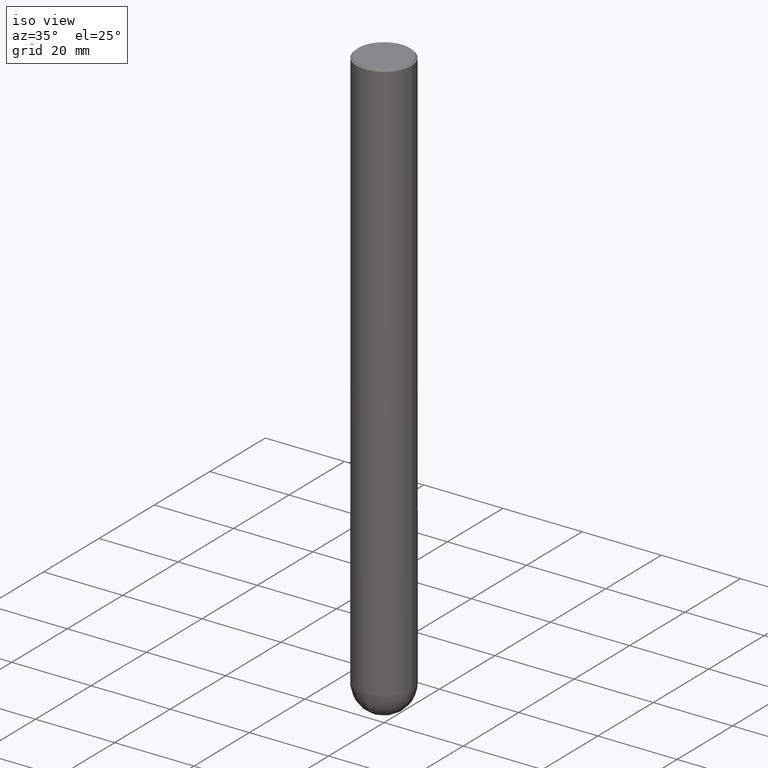
[diagram: clean part render]
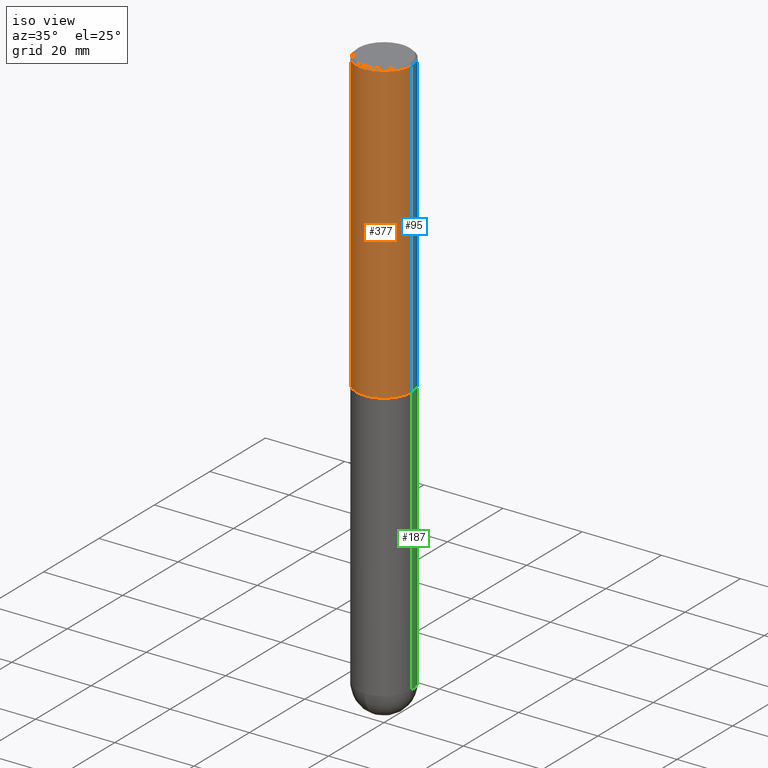
[diagram: same view with three faces highlighted in distinct colors, each labeled with its STEP entity id]
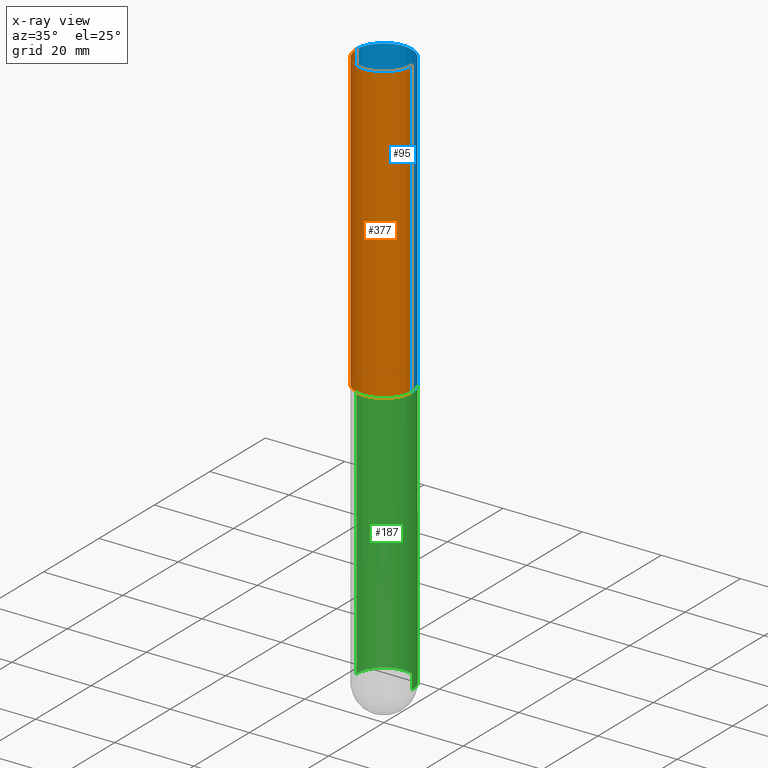
[diagram: x-ray of the same camera — body ghosted, the three highlighted faces saturated]
A machine part, iso view with three faces highlighted in distinct colors.
The next image is the same camera in x-ray (body ghosted, the three faces saturated) — at least one of them is partly hidden behind the body in this view.
Their STEP definitions:

[orange] entity #377 — the highlighted cylindrical surface (edge-blend (fillet) strip) has radius 7.0002 mm, axis along (-0, 0, 1).
#14 = ORIENTED_EDGE ( 'NONE', *, *, #181, .T. ) ;
#15 = CARTESIAN_POINT ( 'NONE',  ( -0.2756000000000002337, 1.958255779754837773E-15, -1.355658510874253128E-29 ) ) ;
#17 = ORIENTED_EDGE ( 'NONE', *, *, #156, .T. ) ;
#36 = CARTESIAN_POINT ( 'NONE',  ( 0.2756000000000004557, -1.223030998183365327E-14, -2.951700000000000212 ) ) ;
#55 = VERTEX_POINT ( 'NONE', #213 ) ;
#72 = ORIENTED_EDGE ( 'NONE', *, *, #283, .F. ) ;
#102 = DIRECTION ( 'NONE',  ( 1.000000000000000000, -6.982962677686267499E-15, 0.000000000000000000 ) ) ;
#103 = EDGE_CURVE ( 'NONE', #347, #55, #400, .T. ) ;
#119 = CARTESIAN_POINT ( 'NONE',  ( 7.218290275216666916E-29, -1.030580546786331359E-14, -2.951700000000000212 ) ) ;
#127 = AXIS2_PLACEMENT_3D ( 'NONE', #119, #288, #362 ) ;
#129 = CARTESIAN_POINT ( 'NONE',  ( 4.890937612370288923E-31, -6.982962677686312563E-17, -0.02000000000000006287 ) ) ;
#150 = LINE ( 'NONE', #170, #265 ) ;
#156 = EDGE_CURVE ( 'NONE', #357, #191, #150, .T. ) ;
#170 = CARTESIAN_POINT ( 'NONE',  ( 0.2756000000000002337, -1.924504513970336926E-15, 1.343874319409361109E-29 ) ) ;
#178 = DIRECTION ( 'NONE',  ( -2.445468806185136877E-29, 3.491481338843145188E-15, 1.000000000000000000 ) ) ;
#181 = EDGE_CURVE ( 'NONE', #347, #357, #299, .T. ) ;
#188 = CYLINDRICAL_SURFACE ( 'NONE', #378, 0.2756000000000002337 ) ;
#191 = VERTEX_POINT ( 'NONE', #364 ) ;
#192 = AXIS2_PLACEMENT_3D ( 'NONE', #129, #255, #102 ) ;
#202 = DIRECTION ( 'NONE',  ( -2.445468806185136877E-29, 3.491481338843145188E-15, 1.000000000000000000 ) ) ;
#213 = CARTESIAN_POINT ( 'NONE',  ( -0.2756000000000000116, 1.854674887193472050E-15, -0.02000000000000006287 ) ) ;
#227 = EDGE_LOOP ( 'NONE', ( #356, #14, #17, #72 ) ) ;
#255 = DIRECTION ( 'NONE',  ( -2.445468806185136597E-29, 3.491481338843145583E-15, 1.000000000000000000 ) ) ;
#265 = VECTOR ( 'NONE', #202, 39.37007874015748143 ) ;
#276 = VECTOR ( 'NONE', #178, 39.37007874015748143 ) ;
#283 = EDGE_CURVE ( 'NONE', #55, #191, #338, .T. ) ;
#288 = DIRECTION ( 'NONE',  ( -2.445468806185136597E-29, 3.491481338843145583E-15, 1.000000000000000000 ) ) ;
#299 = CIRCLE ( 'NONE', #127, 0.2756000000000004557 ) ;
#308 = DIRECTION ( 'NONE',  ( 1.000000000000000000, -6.982962677686267499E-15, 4.876176775795935793E-29 ) ) ;
#338 = CIRCLE ( 'NONE', #192, 0.2756000000000000116 ) ;
#340 = CARTESIAN_POINT ( 'NONE',  ( 0.000000000000000000, 0.000000000000000000, 0.000000000000000000 ) ) ;
#347 = VERTEX_POINT ( 'NONE', #388 ) ;
#356 = ORIENTED_EDGE ( 'NONE', *, *, #103, .F. ) ;
#357 = VERTEX_POINT ( 'NONE', #36 ) ;
#362 = DIRECTION ( 'NONE',  ( 1.000000000000000000, -6.982962677686269077E-15, 0.000000000000000000 ) ) ;
#364 = CARTESIAN_POINT ( 'NONE',  ( 0.2756000000000000116, -1.960582874962697406E-15, -0.02000000000000006287 ) ) ;
#377 = ADVANCED_FACE ( 'NONE', ( #394 ), #188, .T. ) ;
#378 = AXIS2_PLACEMENT_3D ( 'NONE', #340, #411, #308 ) ;
#388 = CARTESIAN_POINT ( 'NONE',  ( -0.2756000000000004002, -3.229561767565246331E-15, -2.951700000000000212 ) ) ;
#394 = FACE_OUTER_BOUND ( 'NONE', #227, .T. ) ;
#400 = LINE ( 'NONE', #15, #276 ) ;
#411 = DIRECTION ( 'NONE',  ( -2.445468806185136597E-29, 3.491481338843145583E-15, 1.000000000000000000 ) ) ;

[blue] entity #95 — the highlighted cylindrical surface (edge-blend (fillet) strip) has radius 7.0002 mm, axis along (-0, 0, 1).
#15 = CARTESIAN_POINT ( 'NONE',  ( -0.2756000000000002337, 1.958255779754837773E-15, -1.355658510874253128E-29 ) ) ;
#22 = CARTESIAN_POINT ( 'NONE',  ( 7.218290275216666916E-29, -1.030580546786331359E-14, -2.951700000000000212 ) ) ;
#26 = ORIENTED_EDGE ( 'NONE', *, *, #103, .T. ) ;
#36 = CARTESIAN_POINT ( 'NONE',  ( 0.2756000000000004557, -1.223030998183365327E-14, -2.951700000000000212 ) ) ;
#49 = CARTESIAN_POINT ( 'NONE',  ( 4.890937612370288923E-31, -6.982962677686312563E-17, -0.02000000000000006287 ) ) ;
#54 = DIRECTION ( 'NONE',  ( -2.445468806185136597E-29, 3.491481338843145583E-15, 1.000000000000000000 ) ) ;
#55 = VERTEX_POINT ( 'NONE', #213 ) ;
#71 = FACE_OUTER_BOUND ( 'NONE', #297, .T. ) ;
#87 = DIRECTION ( 'NONE',  ( -2.445468806185136597E-29, 3.491481338843145583E-15, 1.000000000000000000 ) ) ;
#95 = ADVANCED_FACE ( 'NONE', ( #71 ), #392, .T. ) ;
#103 = EDGE_CURVE ( 'NONE', #347, #55, #400, .T. ) ;
#125 = CIRCLE ( 'NONE', #154, 0.2756000000000000116 ) ;
#139 = DIRECTION ( 'NONE',  ( 1.000000000000000000, -6.982962677686269077E-15, 0.000000000000000000 ) ) ;
#150 = LINE ( 'NONE', #170, #265 ) ;
#154 = AXIS2_PLACEMENT_3D ( 'NONE', #49, #328, #361 ) ;
#156 = EDGE_CURVE ( 'NONE', #357, #191, #150, .T. ) ;
#164 = AXIS2_PLACEMENT_3D ( 'NONE', #333, #54, #397 ) ;
#170 = CARTESIAN_POINT ( 'NONE',  ( 0.2756000000000002337, -1.924504513970336926E-15, 1.343874319409361109E-29 ) ) ;
#178 = DIRECTION ( 'NONE',  ( -2.445468806185136877E-29, 3.491481338843145188E-15, 1.000000000000000000 ) ) ;
#191 = VERTEX_POINT ( 'NONE', #364 ) ;
#196 = ORIENTED_EDGE ( 'NONE', *, *, #223, .T. ) ;
#202 = DIRECTION ( 'NONE',  ( -2.445468806185136877E-29, 3.491481338843145188E-15, 1.000000000000000000 ) ) ;
#213 = CARTESIAN_POINT ( 'NONE',  ( -0.2756000000000000116, 1.854674887193472050E-15, -0.02000000000000006287 ) ) ;
#223 = EDGE_CURVE ( 'NONE', #357, #347, #294, .T. ) ;
#252 = AXIS2_PLACEMENT_3D ( 'NONE', #22, #87, #139 ) ;
#265 = VECTOR ( 'NONE', #202, 39.37007874015748143 ) ;
#276 = VECTOR ( 'NONE', #178, 39.37007874015748143 ) ;
#294 = CIRCLE ( 'NONE', #252, 0.2756000000000004557 ) ;
#297 = EDGE_LOOP ( 'NONE', ( #196, #26, #354, #384 ) ) ;
#328 = DIRECTION ( 'NONE',  ( -2.445468806185136597E-29, 3.491481338843145583E-15, 1.000000000000000000 ) ) ;
#333 = CARTESIAN_POINT ( 'NONE',  ( 0.000000000000000000, 0.000000000000000000, 0.000000000000000000 ) ) ;
#347 = VERTEX_POINT ( 'NONE', #388 ) ;
#354 = ORIENTED_EDGE ( 'NONE', *, *, #358, .F. ) ;
#357 = VERTEX_POINT ( 'NONE', #36 ) ;
#358 = EDGE_CURVE ( 'NONE', #191, #55, #125, .T. ) ;
#361 = DIRECTION ( 'NONE',  ( 1.000000000000000000, -6.982962677686267499E-15, 0.000000000000000000 ) ) ;
#364 = CARTESIAN_POINT ( 'NONE',  ( 0.2756000000000000116, -1.960582874962697406E-15, -0.02000000000000006287 ) ) ;
#384 = ORIENTED_EDGE ( 'NONE', *, *, #156, .F. ) ;
#388 = CARTESIAN_POINT ( 'NONE',  ( -0.2756000000000004002, -3.229561767565246331E-15, -2.951700000000000212 ) ) ;
#392 = CYLINDRICAL_SURFACE ( 'NONE', #164, 0.2756000000000002337 ) ;
#397 = DIRECTION ( 'NONE',  ( 1.000000000000000000, -6.982962677686267499E-15, 4.876176775795935793E-29 ) ) ;
#400 = LINE ( 'NONE', #15, #276 ) ;

[green] entity #187 — the highlighted cylindrical surface (edge-blend (fillet) strip) has radius 7.0002 mm, axis along (-0, 0, 1).
#6 = ORIENTED_EDGE ( 'NONE', *, *, #56, .F. ) ;
#8 = CARTESIAN_POINT ( 'NONE',  ( -0.2756000000000000116, -1.302473808962275237E-14, -2.952700000000000102 ) ) ;
#9 = VERTEX_POINT ( 'NONE', #366 ) ;
#11 = AXIS2_PLACEMENT_3D ( 'NONE', #306, #376, #32 ) ;
#32 = DIRECTION ( 'NONE',  ( 1.000000000000000000, -6.982962677686264344E-15, 0.000000000000000000 ) ) ;
#38 = ORIENTED_EDGE ( 'NONE', *, *, #231, .T. ) ;
#51 = FACE_OUTER_BOUND ( 'NONE', #239, .T. ) ;
#52 = VECTOR ( 'NONE', #217, 39.37007874015748143 ) ;
#56 = EDGE_CURVE ( 'NONE', #233, #336, #153, .T. ) ;
#59 = AXIS2_PLACEMENT_3D ( 'NONE', #370, #296, #149 ) ;
#92 = CARTESIAN_POINT ( 'NONE',  ( 0.000000000000000000, 0.000000000000000000, 0.000000000000000000 ) ) ;
#134 = ORIENTED_EDGE ( 'NONE', *, *, #409, .T. ) ;
#149 = DIRECTION ( 'NONE',  ( 1.000000000000000000, -6.982962677686264344E-15, 0.000000000000000000 ) ) ;
#153 = LINE ( 'NONE', #410, #52 ) ;
#159 = LINE ( 'NONE', #279, #211 ) ;
#177 = CYLINDRICAL_SURFACE ( 'NONE', #246, 0.2756000000000000671 ) ;
#180 = CIRCLE ( 'NONE', #11, 0.2756000000000000671 ) ;
#184 = EDGE_CURVE ( 'NONE', #336, #261, #206, .T. ) ;
#187 = ADVANCED_FACE ( 'NONE', ( #51 ), #177, .T. ) ;
#206 = CIRCLE ( 'NONE', #359, 0.2756000000000000116 ) ;
#211 = VECTOR ( 'NONE', #412, 39.37007874015748143 ) ;
#216 = CIRCLE ( 'NONE', #59, 0.2756000000000000671 ) ;
#217 = DIRECTION ( 'NONE',  ( -2.445468806185136877E-29, 3.491481338843145188E-15, 1.000000000000000000 ) ) ;
#222 = CARTESIAN_POINT ( 'NONE',  ( 0.2756000000000000116, -1.223380146317248997E-14, -2.952700000000000102 ) ) ;
#228 = DIRECTION ( 'NONE',  ( -2.445468806185136597E-29, 3.491481338843145583E-15, 1.000000000000000000 ) ) ;
#231 = EDGE_CURVE ( 'NONE', #233, #9, #216, .T. ) ;
#233 = VERTEX_POINT ( 'NONE', #271 ) ;
#239 = EDGE_LOOP ( 'NONE', ( #287, #134, #395, #6, #38 ) ) ;
#246 = AXIS2_PLACEMENT_3D ( 'NONE', #92, #228, #360 ) ;
#251 = CARTESIAN_POINT ( 'NONE',  ( -0.2756000000000000671, -1.302473808962275553E-14, -5.629900000000000126 ) ) ;
#261 = VERTEX_POINT ( 'NONE', #8 ) ;
#271 = CARTESIAN_POINT ( 'NONE',  ( 0.2756000000000000671, -1.690749838334792865E-14, -5.629900000000000126 ) ) ;
#279 = CARTESIAN_POINT ( 'NONE',  ( -0.2756000000000000671, 1.958255779754836589E-15, -1.355658510874252287E-29 ) ) ;
#287 = ORIENTED_EDGE ( 'NONE', *, *, #380, .T. ) ;
#296 = DIRECTION ( 'NONE',  ( -2.445468806185136597E-29, 3.491481338843145583E-15, 1.000000000000000000 ) ) ;
#306 = CARTESIAN_POINT ( 'NONE',  ( 1.376774483194169922E-28, -1.965669078955302449E-14, -5.629900000000000126 ) ) ;
#330 = CARTESIAN_POINT ( 'NONE',  ( 7.220735744022852519E-29, -1.030929694920215502E-14, -2.952700000000000102 ) ) ;
#336 = VERTEX_POINT ( 'NONE', #222 ) ;
#359 = AXIS2_PLACEMENT_3D ( 'NONE', #330, #401, #393 ) ;
#360 = DIRECTION ( 'NONE',  ( 1.000000000000000000, -6.982962677686267499E-15, 4.876176775795935793E-29 ) ) ;
#366 = CARTESIAN_POINT ( 'NONE',  ( 1.924504513970471427E-15, 0.2755999999999801942, -5.629900000000001015 ) ) ;
#370 = CARTESIAN_POINT ( 'NONE',  ( 1.376774483194169922E-28, -1.965669078955302449E-14, -5.629900000000000126 ) ) ;
#376 = DIRECTION ( 'NONE',  ( -2.445468806185136597E-29, 3.491481338843145583E-15, 1.000000000000000000 ) ) ;
#379 = VERTEX_POINT ( 'NONE', #251 ) ;
#380 = EDGE_CURVE ( 'NONE', #9, #379, #180, .T. ) ;
#393 = DIRECTION ( 'NONE',  ( 1.000000000000000000, -6.982962677686265922E-15, 0.000000000000000000 ) ) ;
#395 = ORIENTED_EDGE ( 'NONE', *, *, #184, .F. ) ;
#401 = DIRECTION ( 'NONE',  ( -2.445468806185136597E-29, 3.491481338843145583E-15, 1.000000000000000000 ) ) ;
#409 = EDGE_CURVE ( 'NONE', #379, #261, #159, .T. ) ;
#410 = CARTESIAN_POINT ( 'NONE',  ( 0.2756000000000000671, -1.924504513970335743E-15, 1.343874319409360268E-29 ) ) ;
#412 = DIRECTION ( 'NONE',  ( -2.445468806185136877E-29, 3.491481338843145188E-15, 1.000000000000000000 ) ) ;